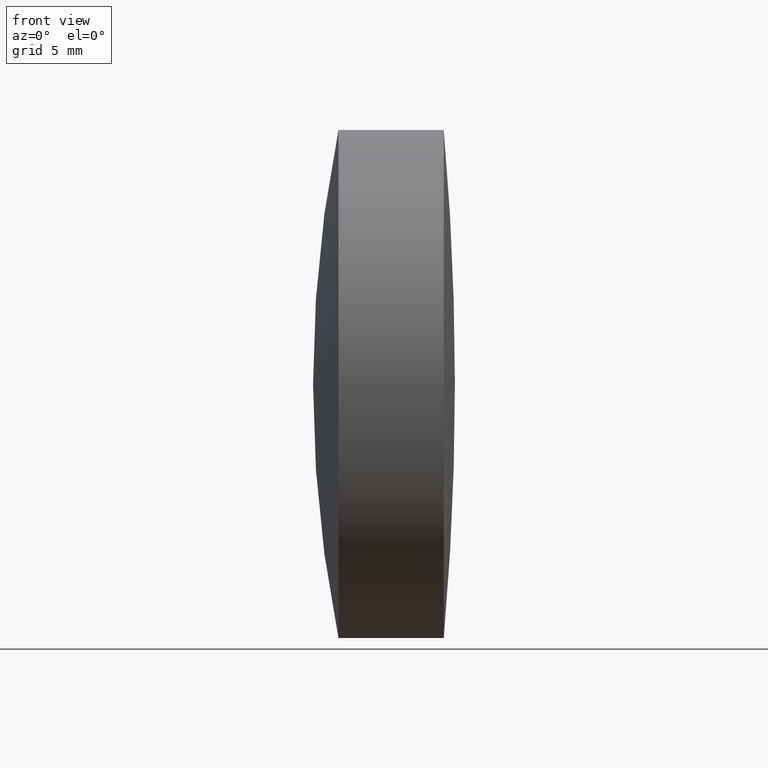
[diagram: clean part render]
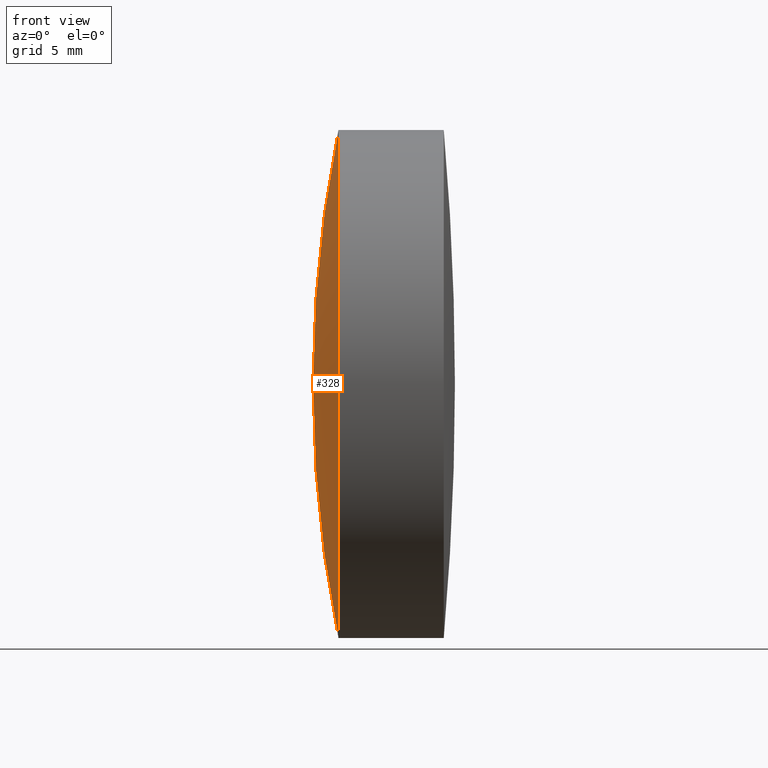
[diagram: same view with one face highlighted and labeled with its STEP entity id]
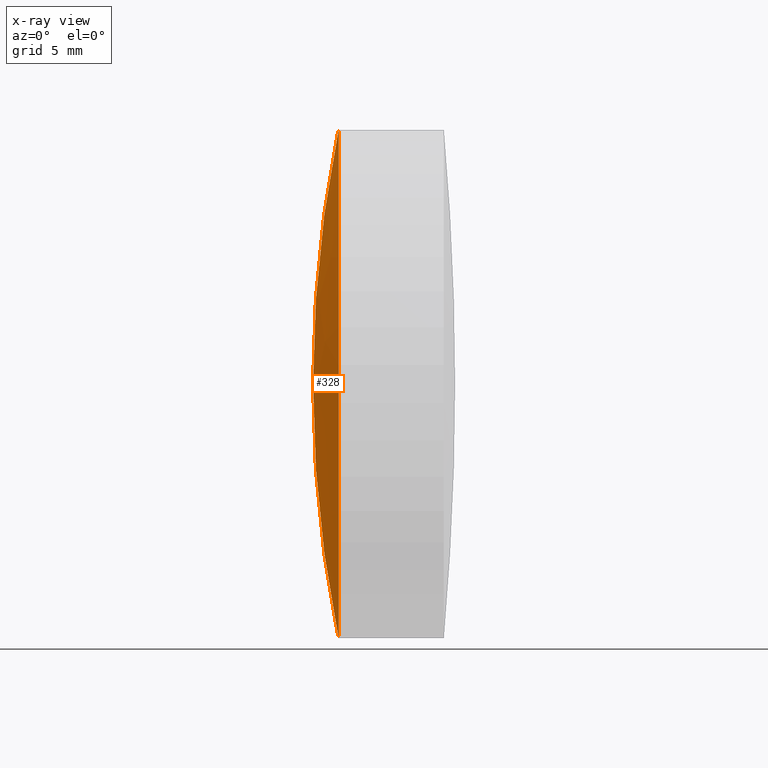
[diagram: x-ray of the same camera — body ghosted, the highlighted face saturated]
A machine part, front view. The second image highlights one B-rep face of the part: STEP entity #328.
The next image is the same camera in x-ray: the body ghosted, the highlighted face saturated — about 0% of this face is hidden behind the body in this view.
In plain terms, the highlighted spherical surface has radius 63.146 mm.
Its self-contained STEP definition (entity closure, byte-faithful):
#21 = CIRCLE ( 'NONE', #253, 63.14600000000000800 ) ;
#55 = ORIENTED_EDGE ( 'NONE', *, *, #294, .T. ) ;
#68 = CARTESIAN_POINT ( 'NONE',  ( 57.42166897357473200, 0.0000000000000000000, -2.514284219101401300E-014 ) ) ;
#73 = DIRECTION ( 'NONE',  ( 0.0000000000000000000, 1.000000000000000000, 0.0000000000000000000 ) ) ;
#76 = DIRECTION ( 'NONE',  ( 0.0000000000000000000, 0.0000000000000000000, 1.000000000000000000 ) ) ;
#85 = FACE_OUTER_BOUND ( 'NONE', #146, .T. ) ;
#103 = CARTESIAN_POINT ( 'NONE',  ( 58.67124487653986600, 1.530808498934192300E-015, -12.50000000000003700 ) ) ;
#104 = DIRECTION ( 'NONE',  ( 0.0000000000000000000, -1.000000000000000000, 0.0000000000000000000 ) ) ;
#105 = SPHERICAL_SURFACE ( 'NONE', #277, 63.14600000000000800 ) ;
#106 = CIRCLE ( 'NONE', #303, 63.14600000000000800 ) ;
#108 = EDGE_CURVE ( 'NONE', #159, #110, #106, .T. ) ;
#110 = VERTEX_POINT ( 'NONE', #68 ) ;
#123 = CARTESIAN_POINT ( 'NONE',  ( 58.67124487653985900, 0.0000000000000000000, 0.0000000000000000000 ) ) ;
#142 = VERTEX_POINT ( 'NONE', #254 ) ;
#146 = EDGE_LOOP ( 'NONE', ( #188, #55, #204 ) ) ;
#159 = VERTEX_POINT ( 'NONE', #103 ) ;
#160 = CARTESIAN_POINT ( 'NONE',  ( 120.5676689735747400, 0.0000000000000000000, -2.900941952996195400E-014 ) ) ;
#172 = DIRECTION ( 'NONE',  ( -0.0000000000000000000, 1.000000000000000000, 1.224646799147353200E-016 ) ) ;
#175 = DIRECTION ( 'NONE',  ( 0.0000000000000000000, 0.0000000000000000000, 1.000000000000000000 ) ) ;
#188 = ORIENTED_EDGE ( 'NONE', *, *, #108, .F. ) ;
#204 = ORIENTED_EDGE ( 'NONE', *, *, #220, .T. ) ;
#213 = DIRECTION ( 'NONE',  ( -1.000000000000000000, -0.0000000000000000000, -0.0000000000000000000 ) ) ;
#220 = EDGE_CURVE ( 'NONE', #142, #110, #21, .T. ) ;
#227 = DIRECTION ( 'NONE',  ( 0.0000000000000000000, -1.224646799147353200E-016, 1.000000000000000000 ) ) ;
#243 = DIRECTION ( 'NONE',  ( 0.0000000000000000000, 0.0000000000000000000, -1.000000000000000000 ) ) ;
#253 = AXIS2_PLACEMENT_3D ( 'NONE', #271, #104, #243 ) ;
#254 = CARTESIAN_POINT ( 'NONE',  ( 58.67124487653986600, 0.0000000000000000000, 12.50000000000000700 ) ) ;
#271 = CARTESIAN_POINT ( 'NONE',  ( 120.5676689735747400, 0.0000000000000000000, -2.900941952996195400E-014 ) ) ;
#277 = AXIS2_PLACEMENT_3D ( 'NONE', #160, #73, #76 ) ;
#292 = AXIS2_PLACEMENT_3D ( 'NONE', #123, #213, #175 ) ;
#294 = EDGE_CURVE ( 'NONE', #159, #142, #322, .T. ) ;
#303 = AXIS2_PLACEMENT_3D ( 'NONE', #332, #172, #227 ) ;
#322 = CIRCLE ( 'NONE', #292, 12.49999999999998900 ) ;
#328 = ADVANCED_FACE ( 'NONE', ( #85 ), #105, .T. ) ;
#332 = CARTESIAN_POINT ( 'NONE',  ( 120.5676689735747400, 0.0000000000000000000, -2.900941952996195400E-014 ) ) ;